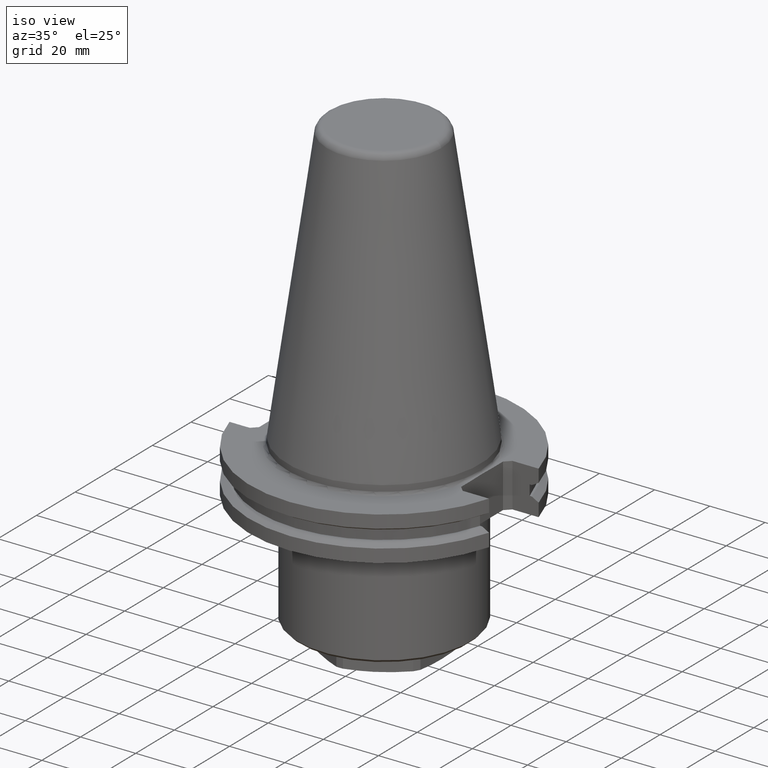
[diagram: clean part render]
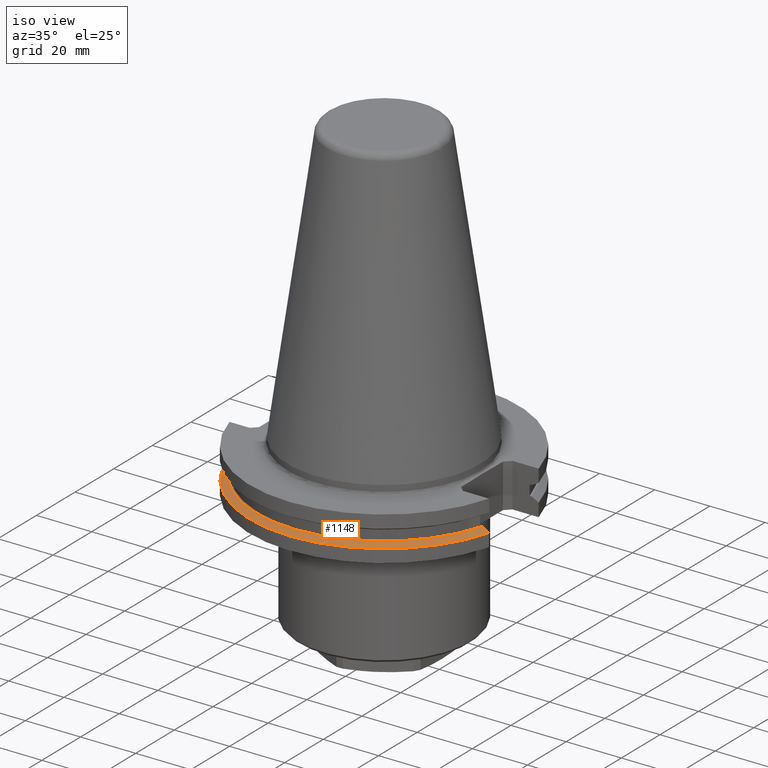
[diagram: same view with one face highlighted and labeled with its STEP entity id]
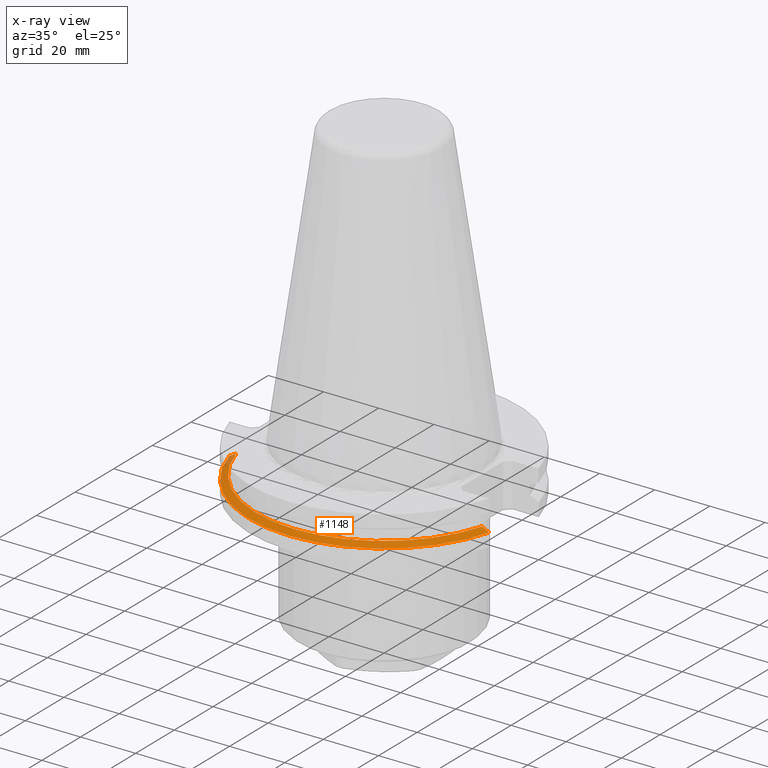
[diagram: x-ray of the same camera — body ghosted, the highlighted face saturated]
A machine part, iso view. The second image highlights one B-rep face of the part: STEP entity #1148.
The next image is the same camera in x-ray: the body ghosted, the highlighted face saturated — about 3% of this face is hidden behind the body in this view.
In plain terms, the highlighted conical surface has half-angle 60 deg.
Its self-contained STEP definition (entity closure, byte-faithful):
#225=B_SPLINE_CURVE_WITH_KNOTS('',3,(#1909,#1910,#1911,#1912),
 .UNSPECIFIED.,.F.,.F.,(4,4),(0.0206077587212824,0.0234303424313697),
 .UNSPECIFIED.);
#226=B_SPLINE_CURVE_WITH_KNOTS('',3,(#1916,#1917,#1918,#1919),
 .UNSPECIFIED.,.F.,.F.,(4,4),(0.0157719633417457,0.0185944837533826),
 .UNSPECIFIED.);
#241=CONICAL_SURFACE('',#1252,48.75,1.0471975511966);
#354=ORIENTED_EDGE('',*,*,#632,.F.);
#355=ORIENTED_EDGE('',*,*,#633,.T.);
#356=ORIENTED_EDGE('',*,*,#634,.T.);
#357=ORIENTED_EDGE('',*,*,#635,.T.);
#632=EDGE_CURVE('',#781,#782,#880,.T.);
#633=EDGE_CURVE('',#781,#783,#225,.T.);
#634=EDGE_CURVE('',#783,#784,#881,.T.);
#635=EDGE_CURVE('',#784,#782,#226,.T.);
#781=VERTEX_POINT('',#1907);
#782=VERTEX_POINT('',#1908);
#783=VERTEX_POINT('',#1913);
#784=VERTEX_POINT('',#1915);
#880=CIRCLE('',#1253,48.75);
#881=CIRCLE('',#1254,46.3747448887957);
#946=EDGE_LOOP('',(#354,#355,#356,#357));
#1035=FACE_BOUND('',#946,.T.);
#1148=ADVANCED_FACE('',(#1035),#241,.T.);
#1252=AXIS2_PLACEMENT_3D('',#1905,#1444,#1445);
#1253=AXIS2_PLACEMENT_3D('',#1906,#1446,#1447);
#1254=AXIS2_PLACEMENT_3D('',#1914,#1448,#1449);
#1444=DIRECTION('',(0.,2.22044604925031E-16,-1.));
#1445=DIRECTION('',(-1.,0.,0.));
#1446=DIRECTION('',(0.,2.22044604925031E-16,-1.));
#1447=DIRECTION('',(-1.,0.,0.));
#1448=DIRECTION('',(0.,2.22044604925031E-16,-1.));
#1449=DIRECTION('',(-1.,0.,0.));
#1905=CARTESIAN_POINT('',(0.,3.18580612206168E-15,-14.3475952641916));
#1906=CARTESIAN_POINT('',(0.,3.18580612206168E-15,-14.3475952641916));
#1907=CARTESIAN_POINT('',(47.025950282796,-12.85,-14.3475952641916));
#1908=CARTESIAN_POINT('',(-47.025950282796,-12.85,-14.3475952641916));
#1909=CARTESIAN_POINT('',(47.025950282796,-12.85,-14.3475952641916));
#1910=CARTESIAN_POINT('',(46.2039634008729,-12.85,-13.889804296534));
#1911=CARTESIAN_POINT('',(45.3816279977281,-12.85,-13.4326509330609));
#1912=CARTESIAN_POINT('',(44.5588875927225,-12.85,-12.9762410863438));
#1913=CARTESIAN_POINT('',(44.5588875927225,-12.85,-12.9762410863438));
#1914=CARTESIAN_POINT('',(0.,2.88130432542916E-15,-12.9762410863438));
#1915=CARTESIAN_POINT('',(-44.5588875927225,-12.85,-12.9762410863438));
#1916=CARTESIAN_POINT('',(-44.5588875927225,-12.85,-12.9762410863438));
#1917=CARTESIAN_POINT('',(-45.3816314955783,-12.85,-13.4326528734704));
#1918=CARTESIAN_POINT('',(-46.2039699110152,-12.85,-13.8898079222419));
#1919=CARTESIAN_POINT('',(-47.025950282796,-12.85,-14.3475952641917));